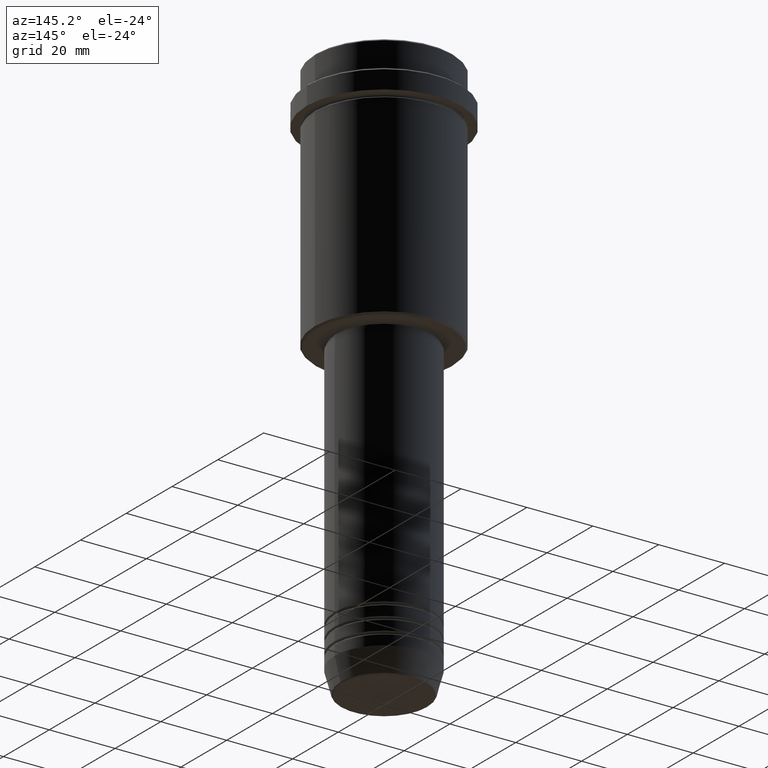
[diagram: clean part render]
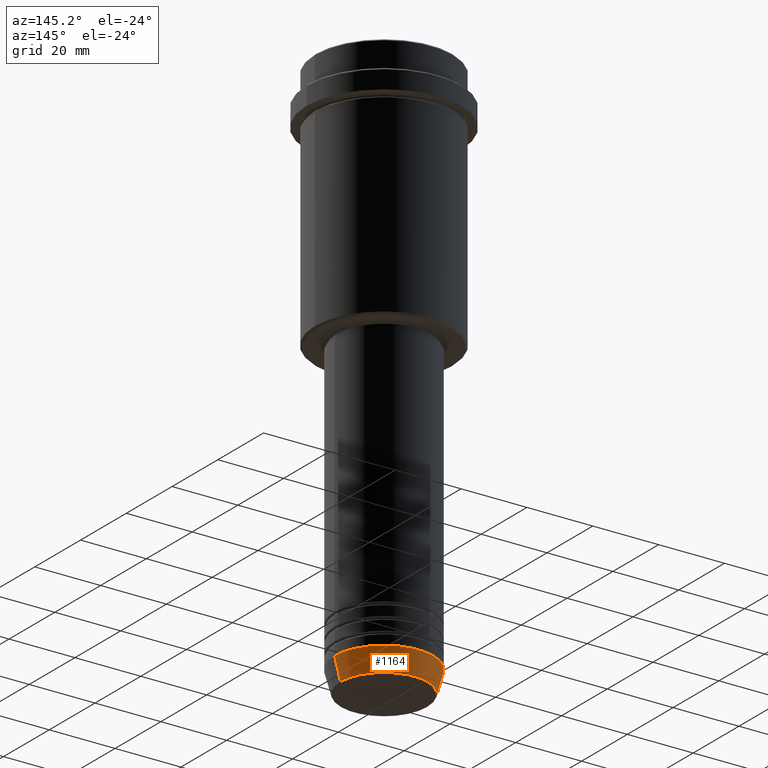
[diagram: same view with one face highlighted and labeled with its STEP entity id]
A machine part, auxiliary view. The second image highlights one B-rep face of the part: STEP entity #1164.
In plain terms, the highlighted conical surface has half-angle 15 deg.
Its self-contained STEP definition (entity closure, byte-faithful):
#29 = CARTESIAN_POINT ( 'NONE',  ( 15.00000000000000000, 0.000000000000000000, -163.0000000000000000 ) ) ;
#58 = AXIS2_PLACEMENT_3D ( 'NONE', #1111, #996, #1334 ) ;
#67 = EDGE_CURVE ( 'NONE', #222, #776, #794, .T. ) ;
#82 = EDGE_CURVE ( 'NONE', #222, #1157, #560, .T. ) ;
#141 = CARTESIAN_POINT ( 'NONE',  ( 15.00000000000000000, 0.000000000000000000, -163.0000000000000000 ) ) ;
#152 = AXIS2_PLACEMENT_3D ( 'NONE', #842, #189, #1305 ) ;
#189 = DIRECTION ( 'NONE',  ( -0.000000000000000000, -0.000000000000000000, 1.000000000000000000 ) ) ;
#222 = VERTEX_POINT ( 'NONE', #965 ) ;
#237 = DIRECTION ( 'NONE',  ( -0.2588190451025213501, 3.169619151431772337E-17, 0.9659258262890680902 ) ) ;
#253 = DIRECTION ( 'NONE',  ( 0.2588190451025213501, 0.000000000000000000, 0.9659258262890680902 ) ) ;
#270 = ORIENTED_EDGE ( 'NONE', *, *, #67, .F. ) ;
#309 = CONICAL_SURFACE ( 'NONE', #152, 15.00000000000000000, 0.2617993877991500740 ) ;
#326 = VERTEX_POINT ( 'NONE', #716 ) ;
#332 = CIRCLE ( 'NONE', #697, 15.00000000000000000 ) ;
#349 = DIRECTION ( 'NONE',  ( 1.000000000000000000, 0.000000000000000000, 0.000000000000000000 ) ) ;
#510 = EDGE_CURVE ( 'NONE', #1157, #326, #780, .T. ) ;
#560 = CIRCLE ( 'NONE', #58, 13.22365507213718772 ) ;
#624 = ORIENTED_EDGE ( 'NONE', *, *, #82, .T. ) ;
#638 = CARTESIAN_POINT ( 'NONE',  ( -13.22365507213718772, 1.728200442216588189E-15, -169.6294095225512706 ) ) ;
#657 = VECTOR ( 'NONE', #237, 1000.000000000000000 ) ;
#678 = VECTOR ( 'NONE', #253, 1000.000000000000000 ) ;
#697 = AXIS2_PLACEMENT_3D ( 'NONE', #1079, #1330, #349 ) ;
#716 = CARTESIAN_POINT ( 'NONE',  ( -15.00000000000000000, 1.836970198721029589E-15, -163.0000000000000000 ) ) ;
#776 = VERTEX_POINT ( 'NONE', #29 ) ;
#780 = LINE ( 'NONE', #1223, #657 ) ;
#794 = LINE ( 'NONE', #141, #678 ) ;
#842 = CARTESIAN_POINT ( 'NONE',  ( 0.000000000000000000, 0.000000000000000000, -163.0000000000000000 ) ) ;
#928 = EDGE_LOOP ( 'NONE', ( #624, #1213, #1187, #270 ) ) ;
#965 = CARTESIAN_POINT ( 'NONE',  ( 13.22365507213718772, 0.000000000000000000, -169.6294095225512706 ) ) ;
#996 = DIRECTION ( 'NONE',  ( -0.000000000000000000, -0.000000000000000000, 1.000000000000000000 ) ) ;
#1079 = CARTESIAN_POINT ( 'NONE',  ( 0.000000000000000000, 0.000000000000000000, -163.0000000000000000 ) ) ;
#1111 = CARTESIAN_POINT ( 'NONE',  ( 0.000000000000000000, 0.000000000000000000, -169.6294095225512706 ) ) ;
#1157 = VERTEX_POINT ( 'NONE', #638 ) ;
#1164 = ADVANCED_FACE ( 'NONE', ( #1385 ), #309, .T. ) ;
#1187 = ORIENTED_EDGE ( 'NONE', *, *, #1384, .F. ) ;
#1213 = ORIENTED_EDGE ( 'NONE', *, *, #510, .T. ) ;
#1223 = CARTESIAN_POINT ( 'NONE',  ( -15.00000000000000000, 1.836970198721029589E-15, -163.0000000000000000 ) ) ;
#1305 = DIRECTION ( 'NONE',  ( 1.000000000000000000, 0.000000000000000000, 0.000000000000000000 ) ) ;
#1330 = DIRECTION ( 'NONE',  ( -0.000000000000000000, -0.000000000000000000, 1.000000000000000000 ) ) ;
#1334 = DIRECTION ( 'NONE',  ( 1.000000000000000000, 0.000000000000000000, 0.000000000000000000 ) ) ;
#1384 = EDGE_CURVE ( 'NONE', #776, #326, #332, .T. ) ;
#1385 = FACE_OUTER_BOUND ( 'NONE', #928, .T. ) ;